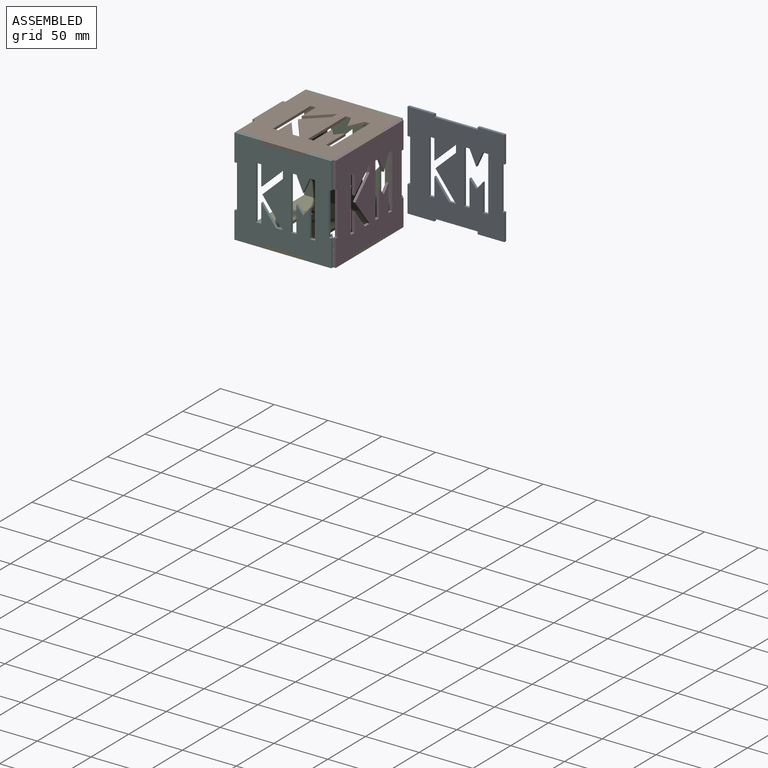
[diagram: assembled view]
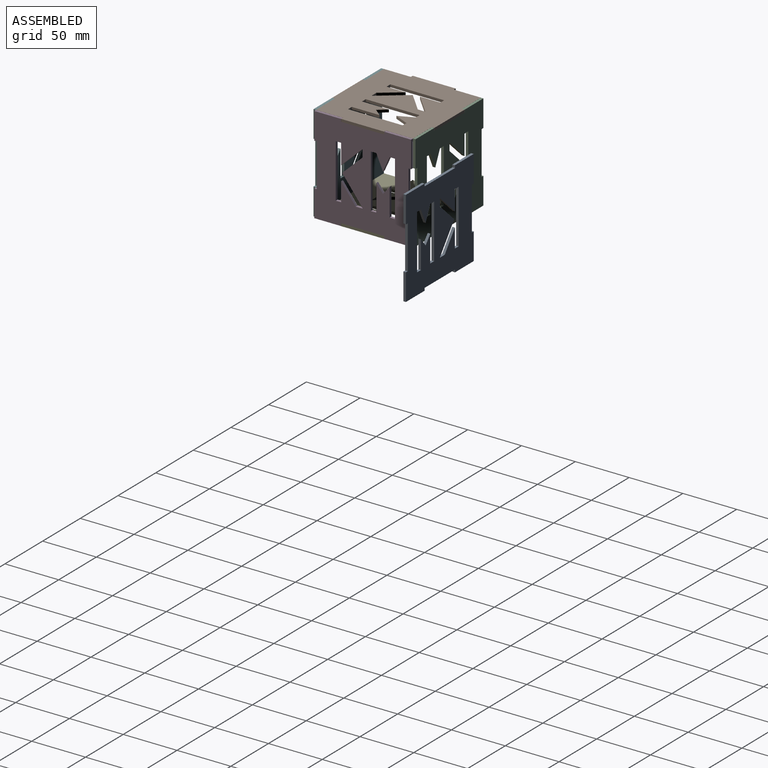
[diagram: assembled view, second angle]
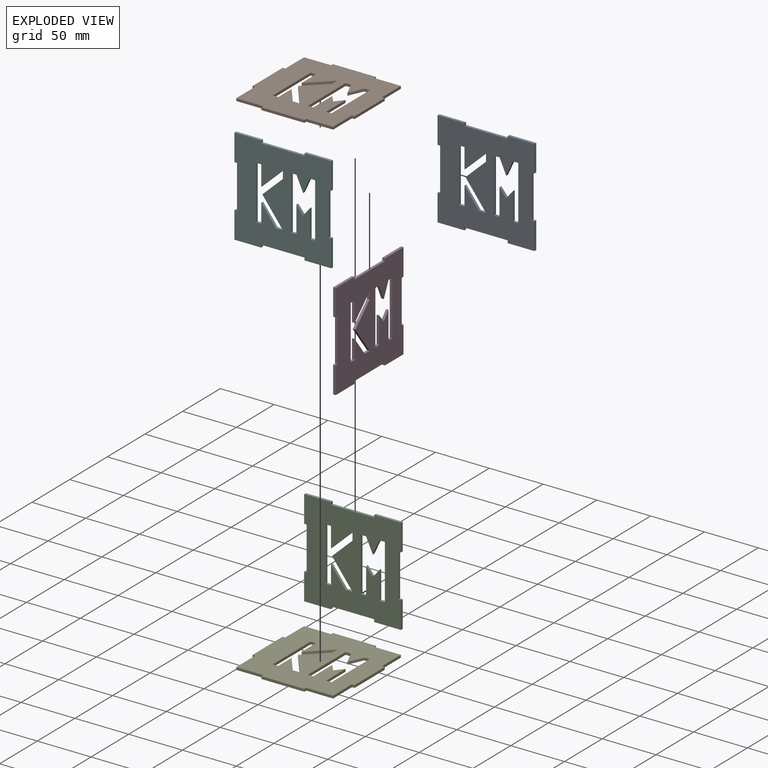
[diagram: exploded view]
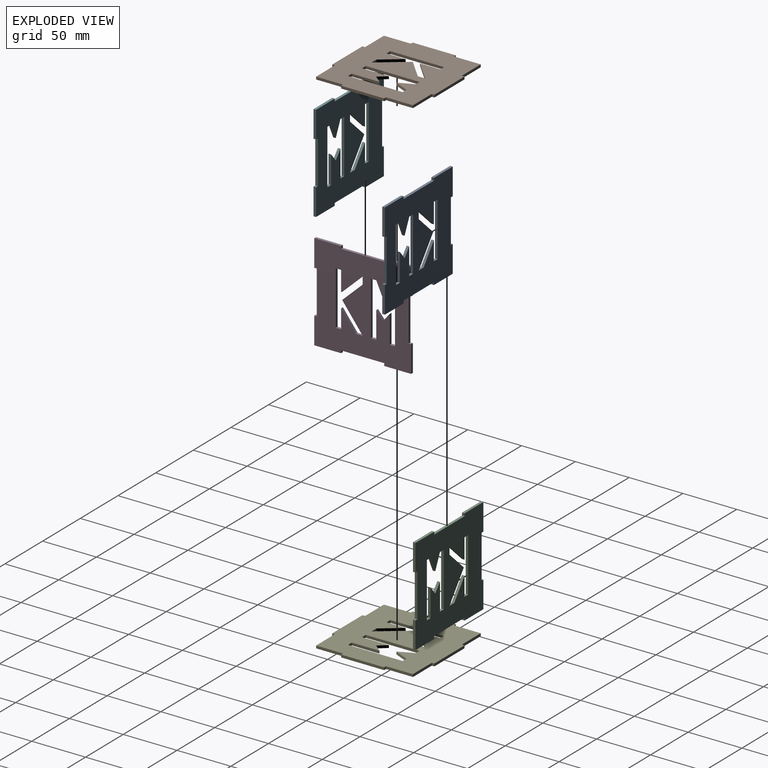
[diagram: exploded view, second angle]
ASSEMBLY  parts=6 mates=4
PART A: 45 faces, bbox 90x2.4x90 mm
  f0: plane 90x90mm, normal (0,-1,0), area 6411.5mm2, adj f2,f3,f4,f5,f6,f7,f8,f9
  f1: plane 90x90mm, normal (0,1,0), area 6411.5mm2, adj f2,f3,f4,f5,f6,f7,f8,f9
  f2: plane 24.88x2.4mm, normal (-1,0,0), area 59.7mm2, adj f0,f1,f3,f43
  f3: plane 24.91x2.4mm, normal (0,0,1), area 59.8mm2, adj f0,f1,f2,f37
  f4: plane 24.91x2.4mm, normal (0,0,-1), area 59.8mm2, adj f0,f1,f5,f40
  f5: plane 24.92x2.4mm, normal (-1,0,0), area 59.8mm2, adj f0,f1,f4,f44
  f6: plane 24.94x2.4mm, normal (1,0,0), area 59.9mm2, adj f0,f1,f7,f34
  f7: plane 24.89x2.4mm, normal (0,0,-1), area 59.7mm2, adj f0,f1,f6,f41
  f8: plane 24.89x2.4mm, normal (0,0,1), area 59.7mm2, adj f0,f1,f9,f38
  f9: plane 24.86x2.4mm, normal (1,0,0), area 59.7mm2, adj f0,f1,f8,f35
  f10: plane 20x18.9mm, normal (0.69,0,-0.73), area 66mm2, adj f0,f1,f11,f20
  f11: plane 18.9x2.4mm, normal (-1,0,0), area 45.4mm2, adj f0,f1,f10,f12
  f12: plane 5x2.4mm, normal (0,0,-1), area 12mm2, adj f0,f1,f11,f13
  f13: plane 50x2.4mm, normal (1,0,0), area 120mm2, adj f0,f1,f12,f14
  f14: plane 5x2.4mm, normal (0,0,1), area 12mm2, adj f0,f1,f13,f15
  f15: plane 17.72x2.4mm, normal (-1,0,0), area 42.5mm2, adj f0,f1,f14,f16
  f16: plane 17.72x13.5mm, normal (0.8,0,0.61), area 53.5mm2, adj f0,f1,f15,f17
  f17: plane 6.5x2.4mm, normal (0,0,1), area 15.6mm2, adj f0,f1,f16,f18
  f18: plane 25x19.04mm, normal (-0.8,0,-0.61), area 75.4mm2, adj f0,f1,f17,f19
  f19: plane 19.04x18mm, normal (-0.69,0,0.73), area 62.9mm2, adj f0,f1,f18,f20
  f20: plane 7x2.4mm, normal (-1,0,0), area 16.8mm2, adj f0,f1,f10,f19
  f21: plane 5x2.4mm, normal (0,0,-1), area 12mm2, adj f0,f1,f22,f32
  f22: plane 50x2.4mm, normal (1,0,0), area 120mm2, adj f0,f1,f21,f23
  f23: plane 5x2.4mm, normal (0,0,1), area 12mm2, adj f0,f1,f22,f24
  f24: plane 25x2.4mm, normal (-1,0,0), area 60mm2, adj f0,f1,f23,f25
  f25: plane 7.51x6.22mm, normal (0.77,0,0.64), area 23.4mm2, adj f0,f1,f24,f26
  f26: plane 7.51x6.21mm, normal (-0.77,0,0.64), area 23.4mm2, adj f0,f1,f25,f27
  f27: plane 25.77x2.4mm, normal (1,0,0), area 61.8mm2, adj f0,f1,f26,f28
  f28: plane 5x2.4mm, normal (0,0,1), area 12mm2, adj f0,f1,f27,f29
  f29: plane 50.77x2.4mm, normal (-1,0,0), area 121.8mm2, adj f0,f1,f28,f30
  f30: plane 5x2.4mm, normal (0,0,-1), area 12mm2, adj f0,f1,f29,f31
  f31: plane 13.71x6.21mm, normal (0.91,0,-0.41), area 36.1mm2, adj f0,f1,f30,f32
  f32: plane 13.71x6.22mm, normal (-0.91,0,-0.41), area 36.1mm2, adj f0,f1,f21,f31
  f33: plane 40.2x2.4mm, normal (1,0,0), area 96.5mm2, adj f0,f1,f34,f35
  f34: plane 2.4x2.37mm, normal (0,0,1), area 5.7mm2, adj f0,f1,f6,f33
  f35: plane 2.4x2.37mm, normal (0,0,-1), area 5.7mm2, adj f0,f1,f9,f33
  f36: plane 40.2x2.4mm, normal (0,0,1), area 96.5mm2, adj f0,f1,f37,f38
  f37: plane 2.4x2.36mm, normal (1,0,0), area 5.7mm2, adj f0,f1,f3,f36
  f38: plane 2.4x2.36mm, normal (-1,0,0), area 5.7mm2, adj f0,f1,f8,f36
  f39: plane 40.2x2.4mm, normal (0,0,-1), area 96.5mm2, adj f0,f1,f40,f41
  f40: plane 2.4x2.37mm, normal (1,0,0), area 5.7mm2, adj f0,f1,f4,f39
  f41: plane 2.4x2.37mm, normal (-1,0,0), area 5.7mm2, adj f0,f1,f7,f39
  f42: plane 40.2x2.4mm, normal (-1,0,0), area 96.5mm2, adj f0,f1,f43,f44
  f43: plane 2.4x2.37mm, normal (0,0,-1), area 5.7mm2, adj f0,f1,f2,f42
  f44: plane 2.4x2.37mm, normal (0,0,1), area 5.7mm2, adj f0,f1,f5,f42
PART B: 45 faces, bbox 94.9x2.4x94.9 mm
  f0: plane 94.89x94.88mm, normal (0,-1,0), area 7182.5mm2, adj f2,f3,f4,f5,f6,f7,f8,f9
  f1: plane 94.89x94.88mm, normal (0,1,0), area 7182.5mm2, adj f2,f3,f4,f5,f6,f7,f8,f9
  f2: plane 2.42x2.4mm, normal (-1,0,0), area 5.8mm2, adj f0,f1,f5,f42
  f3: plane 2.42x2.4mm, normal (1,0,0), area 5.8mm2, adj f0,f1,f15,f42
  f4: plane 25x2.4mm, normal (-1,0,0), area 60mm2, adj f0,f1,f5,f6
  f5: plane 25x2.4mm, normal (0,0,1), area 60mm2, adj f0,f1,f2,f4
  f6: plane 2.44x2.4mm, normal (0,0,1), area 5.9mm2, adj f0,f1,f4,f44
  f7: plane 2.44x2.4mm, normal (0,0,-1), area 5.9mm2, adj f0,f1,f10,f44
  f8: plane 2.46x2.4mm, normal (-1,0,0), area 5.9mm2, adj f0,f1,f9,f43
  f9: plane 25x2.4mm, normal (0,0,-1), area 60mm2, adj f0,f1,f8,f10
  f10: plane 25x2.4mm, normal (-1,0,0), area 60mm2, adj f0,f1,f7,f9
  f11: plane 2.45x2.4mm, normal (0,0,-1), area 5.9mm2, adj f0,f1,f12,f41
  f12: plane 25x2.4mm, normal (1,0,0), area 60mm2, adj f0,f1,f11,f13
  f13: plane 25x2.4mm, normal (0,0,-1), area 60mm2, adj f0,f1,f12,f14
  f14: plane 2.46x2.4mm, normal (1,0,0), area 5.9mm2, adj f0,f1,f13,f43
  f15: plane 25x2.4mm, normal (0,0,1), area 60mm2, adj f0,f1,f3,f16
  f16: plane 25x2.4mm, normal (1,0,0), area 60mm2, adj f0,f1,f15,f17
  f17: plane 2.45x2.4mm, normal (0,0,1), area 5.9mm2, adj f0,f1,f16,f41
  f18: plane 20x18.9mm, normal (0.69,0,-0.73), area 66mm2, adj f0,f1,f19,f28
  f19: plane 18.9x2.4mm, normal (-1,0,0), area 45.4mm2, adj f0,f1,f18,f20
  f20: plane 5x2.4mm, normal (0,0,-1), area 12mm2, adj f0,f1,f19,f21
  f21: plane 50x2.4mm, normal (1,0,0), area 120mm2, adj f0,f1,f20,f22
  f22: plane 5x2.4mm, normal (0,0,1), area 12mm2, adj f0,f1,f21,f23
  f23: plane 17.72x2.4mm, normal (-1,0,0), area 42.5mm2, adj f0,f1,f22,f24
  f24: plane 17.72x13.5mm, normal (0.8,0,0.61), area 53.5mm2, adj f0,f1,f23,f25
  f25: plane 6.5x2.4mm, normal (0,0,1), area 15.6mm2, adj f0,f1,f24,f26
  f26: plane 25x19.04mm, normal (-0.8,0,-0.61), area 75.4mm2, adj f0,f1,f25,f27
  f27: plane 19.04x18mm, normal (-0.69,0,0.73), area 62.9mm2, adj f0,f1,f26,f28
  f28: plane 7x2.4mm, normal (-1,0,0), area 16.8mm2, adj f0,f1,f18,f27
  f29: plane 5x2.4mm, normal (0,0,-1), area 12mm2, adj f0,f1,f30,f40
  f30: plane 50x2.4mm, normal (1,0,0), area 120mm2, adj f0,f1,f29,f31
  f31: plane 5x2.4mm, normal (0,0,1), area 12mm2, adj f0,f1,f30,f32
  f32: plane 25x2.4mm, normal (-1,0,0), area 60mm2, adj f0,f1,f31,f33
  f33: plane 7.51x6.22mm, normal (0.77,0,0.64), area 23.4mm2, adj f0,f1,f32,f34
  f34: plane 7.51x6.21mm, normal (-0.77,0,0.64), area 23.4mm2, adj f0,f1,f33,f35
  f35: plane 25.77x2.4mm, normal (1,0,0), area 61.8mm2, adj f0,f1,f34,f36
  f36: plane 5x2.4mm, normal (0,0,1), area 12mm2, adj f0,f1,f35,f37
  f37: plane 50.77x2.4mm, normal (-1,0,0), area 121.8mm2, adj f0,f1,f36,f38
  f38: plane 5x2.4mm, normal (0,0,-1), area 12mm2, adj f0,f1,f37,f39
  f39: plane 13.71x6.21mm, normal (0.91,0,-0.41), area 36.1mm2, adj f0,f1,f38,f40
  f40: plane 13.71x6.22mm, normal (-0.91,0,-0.41), area 36.1mm2, adj f0,f1,f29,f39
  f41: plane 40x2.4mm, normal (1,0,0), area 96mm2, adj f0,f1,f11,f17
  f42: plane 40x2.4mm, normal (0,0,1), area 96mm2, adj f0,f1,f2,f3
  f43: plane 40x2.4mm, normal (0,0,-1), area 96mm2, adj f0,f1,f8,f14
  f44: plane 40x2.4mm, normal (-1,0,0), area 96mm2, adj f0,f1,f6,f7
PART C: same geometry as A
PART D: same geometry as A
PART E: same geometry as B
PART F: same geometry as A
PLACE A t=(68.67,67.31,-2.15)mm
PLACE B rot(axis=(-1,0,0),90deg) t=(-0.04,-19.26,50.42)mm
PLACE C t=(-0.06,28.15,7.78)mm
PLACE D rot(axis=(0,0,1),90deg) t=(45,-19.28,7.78)mm
PLACE E rot(axis=(-1,0,0),90deg) t=(-0.04,-19.26,-37.26)mm
PLACE F t=(-0.06,-64.32,7.78)mm
MATE fastened E.f0 <-> C.f39  axis (0,0,1) through (-0.04,28.15,-34.86)mm
MATE fastened B.f1 <-> C.f36  axis (0,0,-1) through (-0.04,28.15,50.42)mm
MATE fastened F.f36 <-> B.f1  axis (0,0,1) through (-0.04,-66.72,50.42)mm
MATE fastened D.f36 <-> B.f1  axis (0,0,1) through (47.4,-19.26,50.42)mm
